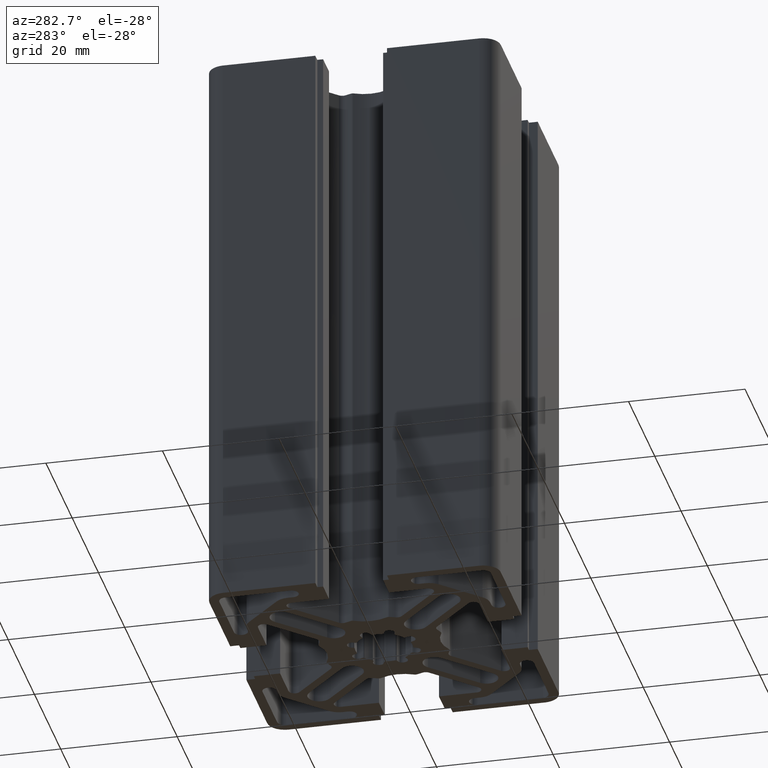
[diagram: clean part render]
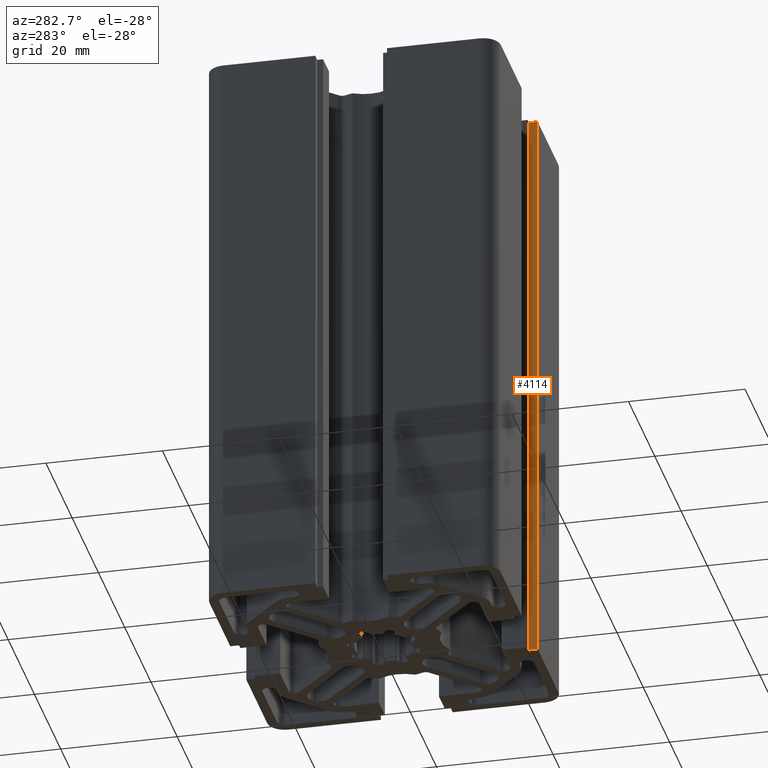
[diagram: same view with one face highlighted and labeled with its STEP entity id]
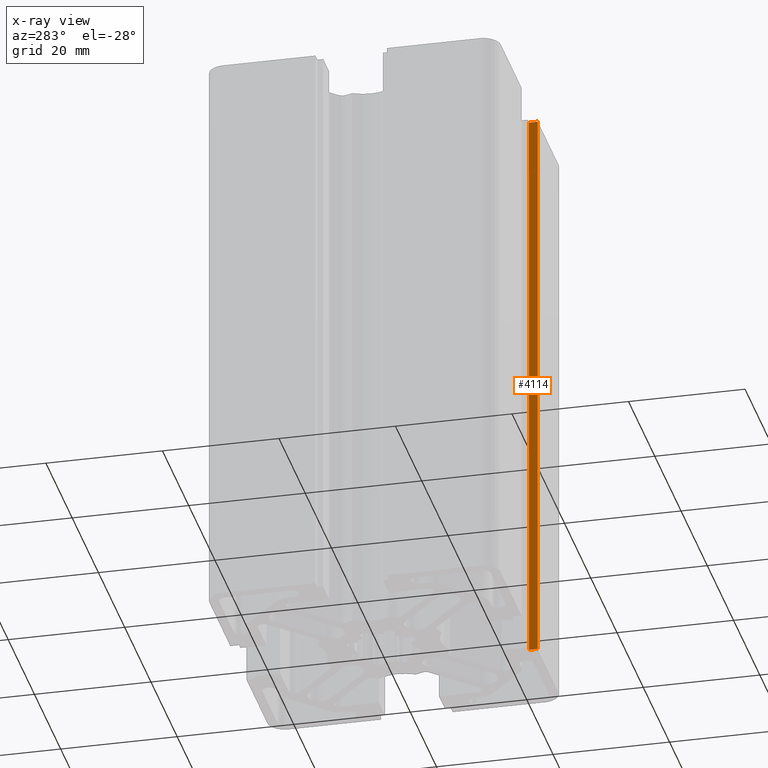
[diagram: x-ray of the same camera — body ghosted, the highlighted face saturated]
A machine part, auxiliary view. The second image highlights one B-rep face of the part: STEP entity #4114.
The next image is the same camera in x-ray: the body ghosted, the highlighted face saturated — about 0% of this face is hidden behind the body in this view.
In plain terms, the highlighted planar face has unit normal (-1, 0, 0).
Its self-contained STEP definition (entity closure, byte-faithful):
#84=PLANE('',#4482);
#256=FACE_OUTER_BOUND('',#466,.T.);
#466=EDGE_LOOP('',(#3137,#3138,#3139,#3140));
#796=LINE('',#6694,#1188);
#797=LINE('',#6697,#1189);
#798=LINE('',#6699,#1190);
#799=LINE('',#6700,#1191);
#1188=VECTOR('',#5442,100.);
#1189=VECTOR('',#5445,1.49999999999995);
#1190=VECTOR('',#5446,1.49999999999995);
#1191=VECTOR('',#5447,100.);
#1839=VERTEX_POINT('',#6690);
#1840=VERTEX_POINT('',#6692);
#1841=VERTEX_POINT('',#6696);
#1842=VERTEX_POINT('',#6698);
#2384=EDGE_CURVE('',#1839,#1840,#796,.T.);
#2385=EDGE_CURVE('',#1841,#1839,#797,.T.);
#2386=EDGE_CURVE('',#1842,#1840,#798,.T.);
#2387=EDGE_CURVE('',#1841,#1842,#799,.T.);
#3137=ORIENTED_EDGE('',*,*,#2385,.T.);
#3138=ORIENTED_EDGE('',*,*,#2384,.T.);
#3139=ORIENTED_EDGE('',*,*,#2386,.F.);
#3140=ORIENTED_EDGE('',*,*,#2387,.F.);
#4114=ADVANCED_FACE('',(#256),#84,.T.);
#4482=AXIS2_PLACEMENT_3D('',#6695,#5443,#5444);
#5442=DIRECTION('',(0.,0.,1.));
#5443=DIRECTION('center_axis',(-1.,0.,0.));
#5444=DIRECTION('ref_axis',(0.,-1.,0.));
#5445=DIRECTION('',(0.,-1.,0.));
#5446=DIRECTION('',(0.,-1.,0.));
#5447=DIRECTION('',(0.,0.,1.));
#6690=CARTESIAN_POINT('',(6.15,-25.,0.));
#6692=CARTESIAN_POINT('',(6.15,-25.,100.));
#6694=CARTESIAN_POINT('',(6.15,-25.,0.));
#6695=CARTESIAN_POINT('Origin',(6.15,-23.5,0.));
#6696=CARTESIAN_POINT('',(6.15,-23.5,0.));
#6697=CARTESIAN_POINT('',(6.15,-23.5,0.));
#6698=CARTESIAN_POINT('',(6.15,-23.5,100.));
#6699=CARTESIAN_POINT('',(6.15,-23.5,100.));
#6700=CARTESIAN_POINT('',(6.15,-23.5,0.));